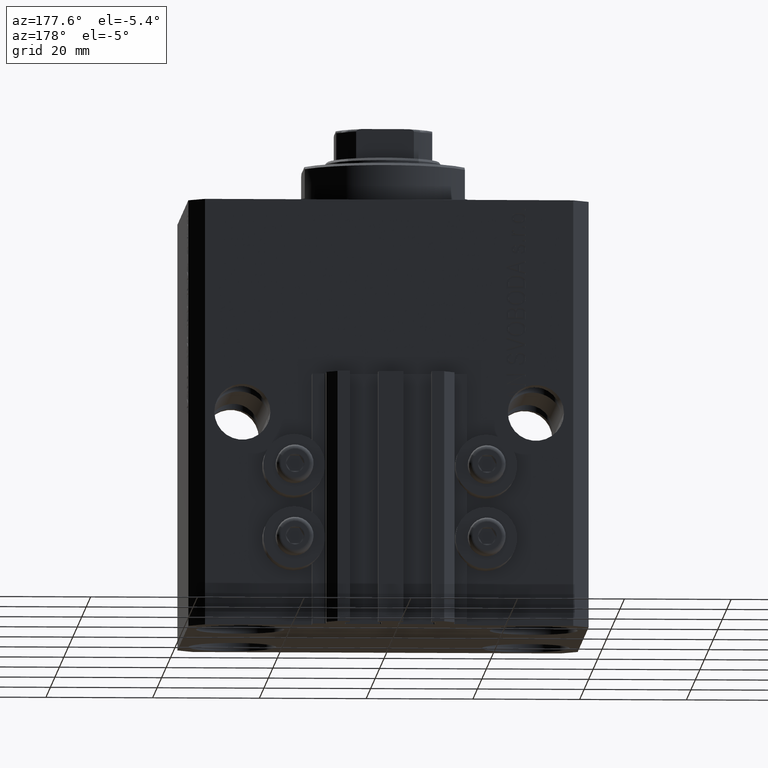
[diagram: clean part render]
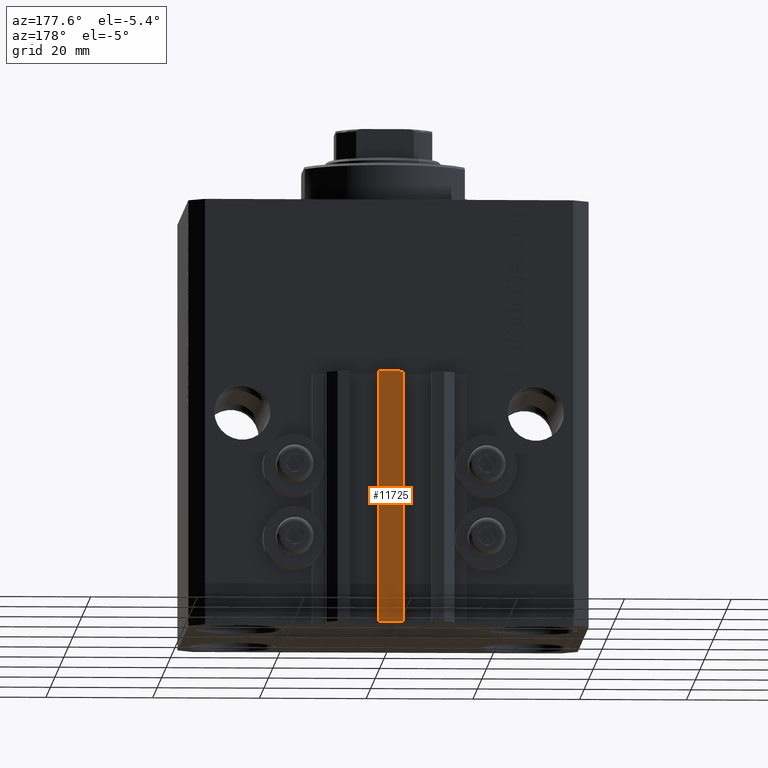
[diagram: same view with one face highlighted and labeled with its STEP entity id]
A machine part, auxiliary view. The second image highlights one B-rep face of the part: STEP entity #11725.
In plain terms, the highlighted planar face has unit normal (0, -1, 0).
Its self-contained STEP definition (entity closure, byte-faithful):
#1546 = VECTOR ( 'NONE', #1613, 1000.000000000000000 ) ;
#1613 = DIRECTION ( 'NONE',  ( 1.000000000000000000, 0.000000000000000000, 0.000000000000000000 ) ) ;
#2543 = CARTESIAN_POINT ( 'NONE',  ( -2.350000000000003642, 35.50000000000001421, -80.00000000000000000 ) ) ;
#2956 = CARTESIAN_POINT ( 'NONE',  ( -2.350000000000003642, 35.50000000000001421, -33.00000000000000000 ) ) ;
#4256 = VERTEX_POINT ( 'NONE', #32329 ) ;
#5119 = CARTESIAN_POINT ( 'NONE',  ( 2.349999999999999645, 35.50000000000001421, -33.00000000000000000 ) ) ;
#5252 = AXIS2_PLACEMENT_3D ( 'NONE', #33305, #29273, #15313 ) ;
#6326 = DIRECTION ( 'NONE',  ( 0.000000000000000000, 0.000000000000000000, 1.000000000000000000 ) ) ;
#6847 = ORIENTED_EDGE ( 'NONE', *, *, #17711, .F. ) ;
#7020 = ORIENTED_EDGE ( 'NONE', *, *, #13490, .T. ) ;
#8933 = ORIENTED_EDGE ( 'NONE', *, *, #35957, .F. ) ;
#9253 = EDGE_CURVE ( 'NONE', #28622, #4256, #24308, .T. ) ;
#9830 = CARTESIAN_POINT ( 'NONE',  ( -2.350000000000003642, 35.50000000000001421, -80.00000000000000000 ) ) ;
#11725 = ADVANCED_FACE ( 'NONE', ( #19976 ), #36640, .F. ) ;
#11910 = VERTEX_POINT ( 'NONE', #18045 ) ;
#13148 = LINE ( 'NONE', #2956, #32475 ) ;
#13204 = DIRECTION ( 'NONE',  ( 0.000000000000000000, 0.000000000000000000, 1.000000000000000000 ) ) ;
#13490 = EDGE_CURVE ( 'NONE', #4256, #36665, #13148, .T. ) ;
#15313 = DIRECTION ( 'NONE',  ( 0.000000000000000000, -0.000000000000000000, -1.000000000000000000 ) ) ;
#16510 = CARTESIAN_POINT ( 'NONE',  ( -2.350000000000003642, 35.50000000000001421, -80.00000000000000000 ) ) ;
#17711 = EDGE_CURVE ( 'NONE', #11910, #36665, #42313, .T. ) ;
#18045 = CARTESIAN_POINT ( 'NONE',  ( 2.349999999999999645, 35.50000000000001421, -80.00000000000000000 ) ) ;
#19019 = VECTOR ( 'NONE', #13204, 1000.000000000000000 ) ;
#19639 = VECTOR ( 'NONE', #6326, 1000.000000000000000 ) ;
#19887 = EDGE_LOOP ( 'NONE', ( #7020, #6847, #8933, #27461 ) ) ;
#19976 = FACE_OUTER_BOUND ( 'NONE', #19887, .T. ) ;
#24308 = LINE ( 'NONE', #2543, #19639 ) ;
#27461 = ORIENTED_EDGE ( 'NONE', *, *, #9253, .T. ) ;
#28622 = VERTEX_POINT ( 'NONE', #9830 ) ;
#29273 = DIRECTION ( 'NONE',  ( 0.000000000000000000, -1.000000000000000000, 0.000000000000000000 ) ) ;
#32329 = CARTESIAN_POINT ( 'NONE',  ( -2.350000000000003642, 35.50000000000001421, -33.00000000000000000 ) ) ;
#32475 = VECTOR ( 'NONE', #45596, 1000.000000000000000 ) ;
#33305 = CARTESIAN_POINT ( 'NONE',  ( -2.350000000000003642, 35.50000000000001421, -80.00000000000000000 ) ) ;
#34297 = CARTESIAN_POINT ( 'NONE',  ( 2.349999999999999645, 35.50000000000001421, -80.00000000000000000 ) ) ;
#35957 = EDGE_CURVE ( 'NONE', #28622, #11910, #45166, .T. ) ;
#36640 = PLANE ( 'NONE',  #5252 ) ;
#36665 = VERTEX_POINT ( 'NONE', #5119 ) ;
#42313 = LINE ( 'NONE', #34297, #19019 ) ;
#45166 = LINE ( 'NONE', #16510, #1546 ) ;
#45596 = DIRECTION ( 'NONE',  ( 1.000000000000000000, 0.000000000000000000, 0.000000000000000000 ) ) ;